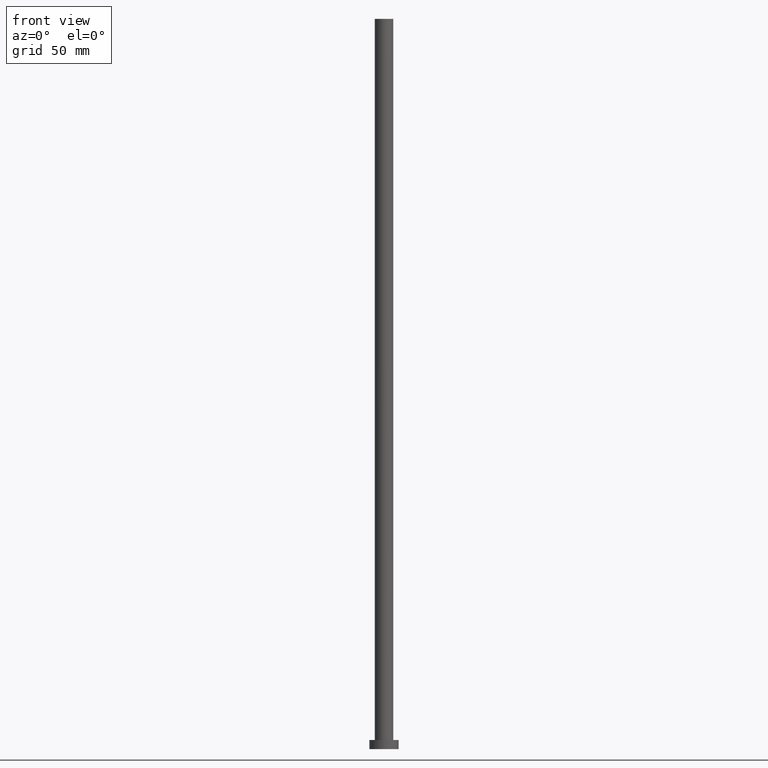
[diagram: clean part render]
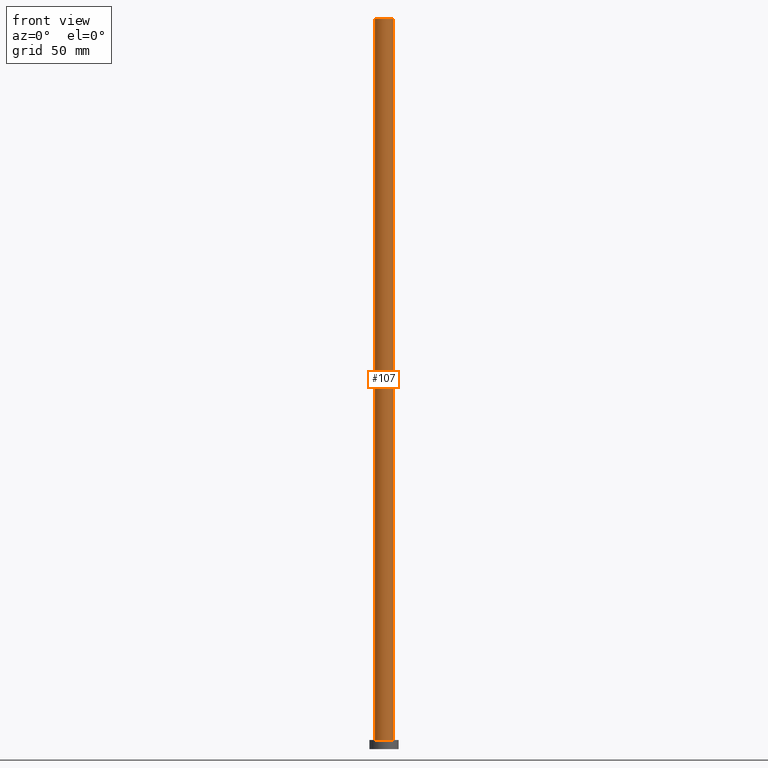
[diagram: same view with one face highlighted and labeled with its STEP entity id]
A machine part, front view. The second image highlights one B-rep face of the part: STEP entity #107.
In plain terms, the highlighted cylindrical surface (edge-blend (fillet) strip) has radius 5.1 mm, axis along (-0, -0, -1).
Its self-contained STEP definition (entity closure, byte-faithful):
#1 = DIRECTION ( 'NONE',  ( -0.000000000000000000, -0.000000000000000000, -1.000000000000000000 ) ) ;
#16 = DIRECTION ( 'NONE',  ( 1.000000000000000000, 0.000000000000000000, 0.000000000000000000 ) ) ;
#19 = CARTESIAN_POINT ( 'NONE',  ( -5.100000000000001421, 0.000000000000000000, 400.0000000000000000 ) ) ;
#20 = EDGE_CURVE ( 'NONE', #83, #190, #181, .T. ) ;
#23 = LINE ( 'NONE', #62, #133 ) ;
#25 = AXIS2_PLACEMENT_3D ( 'NONE', #213, #196, #16 ) ;
#26 = CIRCLE ( 'NONE', #185, 5.100000000000001421 ) ;
#39 = DIRECTION ( 'NONE',  ( -0.000000000000000000, -0.000000000000000000, -1.000000000000000000 ) ) ;
#47 = ORIENTED_EDGE ( 'NONE', *, *, #20, .T. ) ;
#51 = EDGE_LOOP ( 'NONE', ( #146, #101, #47, #222 ) ) ;
#62 = CARTESIAN_POINT ( 'NONE',  ( 5.100000000000001421, 6.245698675651501825E-16, 400.0000000000000000 ) ) ;
#68 = EDGE_CURVE ( 'NONE', #83, #149, #26, .T. ) ;
#69 = DIRECTION ( 'NONE',  ( -0.000000000000000000, -0.000000000000000000, -1.000000000000000000 ) ) ;
#78 = DIRECTION ( 'NONE',  ( 1.000000000000000000, 0.000000000000000000, 0.000000000000000000 ) ) ;
#79 = VECTOR ( 'NONE', #39, 1000.000000000000000 ) ;
#83 = VERTEX_POINT ( 'NONE', #19 ) ;
#101 = ORIENTED_EDGE ( 'NONE', *, *, #68, .F. ) ;
#103 = CARTESIAN_POINT ( 'NONE',  ( 0.000000000000000000, 0.000000000000000000, 400.0000000000000000 ) ) ;
#107 = ADVANCED_FACE ( 'NONE', ( #137 ), #154, .T. ) ;
#115 = CARTESIAN_POINT ( 'NONE',  ( 0.000000000000000000, 0.000000000000000000, 400.0000000000000000 ) ) ;
#133 = VECTOR ( 'NONE', #69, 1000.000000000000000 ) ;
#134 = CARTESIAN_POINT ( 'NONE',  ( 5.100000000000001421, 6.245698675651501825E-16, 400.0000000000000000 ) ) ;
#137 = FACE_OUTER_BOUND ( 'NONE', #51, .T. ) ;
#142 = CIRCLE ( 'NONE', #25, 5.100000000000001421 ) ;
#144 = CARTESIAN_POINT ( 'NONE',  ( 5.100000000000001421, 6.245698675651501825E-16, 5.000000000000000000 ) ) ;
#146 = ORIENTED_EDGE ( 'NONE', *, *, #192, .F. ) ;
#149 = VERTEX_POINT ( 'NONE', #134 ) ;
#154 = CYLINDRICAL_SURFACE ( 'NONE', #241, 5.100000000000001421 ) ;
#159 = DIRECTION ( 'NONE',  ( 0.000000000000000000, 0.000000000000000000, 1.000000000000000000 ) ) ;
#180 = EDGE_CURVE ( 'NONE', #190, #206, #142, .T. ) ;
#181 = LINE ( 'NONE', #255, #79 ) ;
#185 = AXIS2_PLACEMENT_3D ( 'NONE', #115, #159, #78 ) ;
#190 = VERTEX_POINT ( 'NONE', #202 ) ;
#192 = EDGE_CURVE ( 'NONE', #149, #206, #23, .T. ) ;
#196 = DIRECTION ( 'NONE',  ( 0.000000000000000000, 0.000000000000000000, 1.000000000000000000 ) ) ;
#202 = CARTESIAN_POINT ( 'NONE',  ( -5.100000000000001421, 0.000000000000000000, 5.000000000000000000 ) ) ;
#206 = VERTEX_POINT ( 'NONE', #144 ) ;
#213 = CARTESIAN_POINT ( 'NONE',  ( 0.000000000000000000, 0.000000000000000000, 5.000000000000000000 ) ) ;
#222 = ORIENTED_EDGE ( 'NONE', *, *, #180, .T. ) ;
#241 = AXIS2_PLACEMENT_3D ( 'NONE', #103, #1, #254 ) ;
#254 = DIRECTION ( 'NONE',  ( -1.000000000000000000, 0.000000000000000000, 0.000000000000000000 ) ) ;
#255 = CARTESIAN_POINT ( 'NONE',  ( -5.100000000000001421, 0.000000000000000000, 400.0000000000000000 ) ) ;